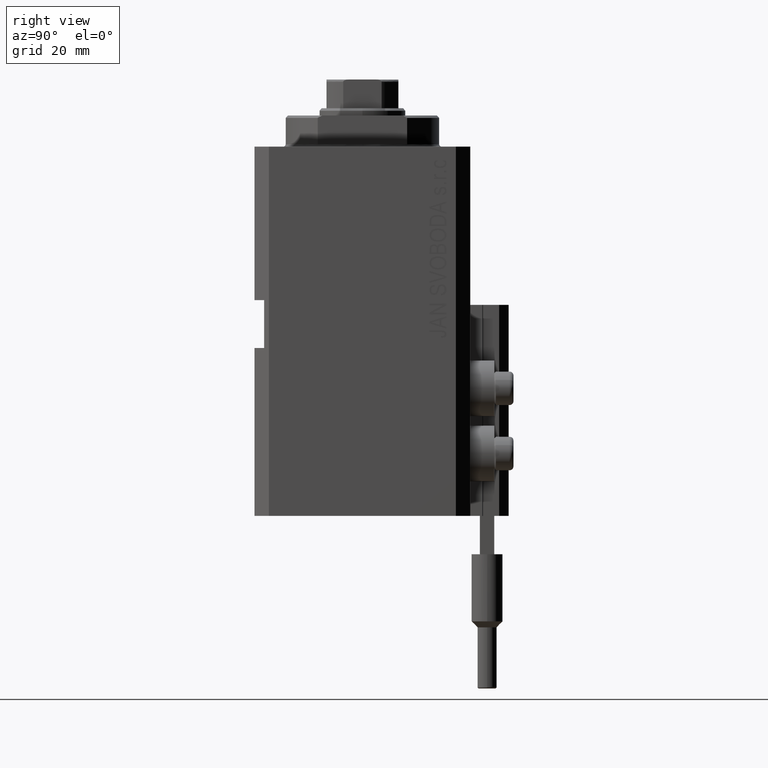
[diagram: clean part render]
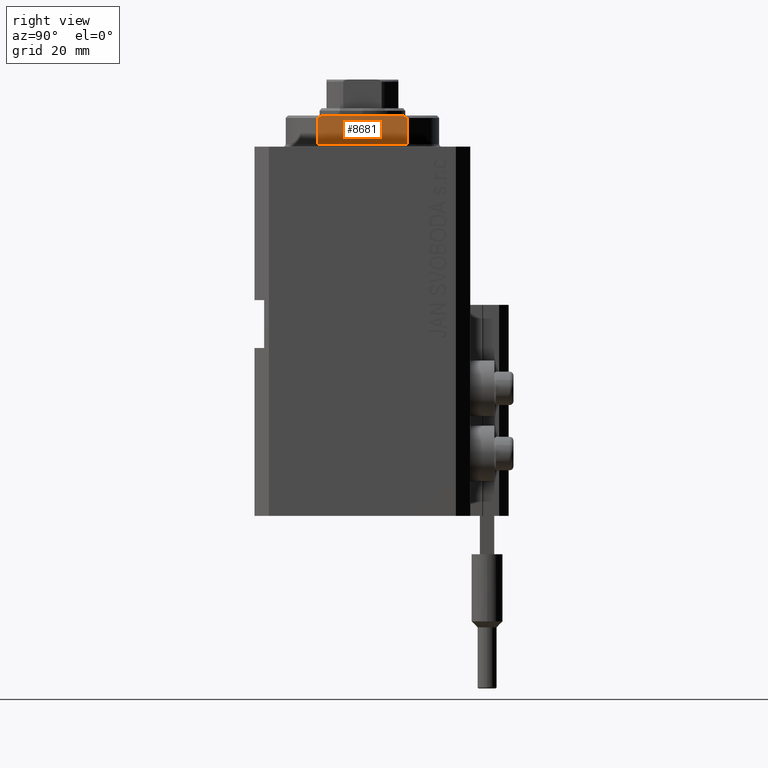
[diagram: same view with one face highlighted and labeled with its STEP entity id]
A machine part, right view. The second image highlights one B-rep face of the part: STEP entity #8681.
In plain terms, the highlighted planar face has unit normal (-1, 0, 0).
Its self-contained STEP definition (entity closure, byte-faithful):
#3423 = EDGE_CURVE ( 'NONE', #23325, #42978, #14586, .T. ) ;
#4137 = CARTESIAN_POINT ( 'NONE',  ( -13.00000000000000000, 9.034035639617135516, -6.171007825636148247 ) ) ;
#7753 = EDGE_CURVE ( 'NONE', #8978, #27877, #24381, .T. ) ;
#7782 = CARTESIAN_POINT ( 'NONE',  ( -13.00000000000000000, -9.327379053088815652, -0.4999999999999995559 ) ) ;
#8473 = CARTESIAN_POINT ( 'NONE',  ( -13.00000000000000000, -43.08131845707602992, -0.4999999999999995559 ) ) ;
#8681 = ADVANCED_FACE ( 'NONE', ( #46675 ), #14169, .F. ) ;
#8978 = VERTEX_POINT ( 'NONE', #15723 ) ;
#9394 = VERTEX_POINT ( 'NONE', #14948 ) ;
#10342 = CARTESIAN_POINT ( 'NONE',  ( -13.00000000000000000, -8.738941625005658409, -6.337731789204286592 ) ) ;
#10762 = B_SPLINE_CURVE_WITH_KNOTS ( 'NONE', 3,
 ( #13989, #10342, #43552, #18336 ),
 .UNSPECIFIED., .F., .F.,
 ( 4, 4 ),
 ( 0.04915043732154475431, 0.05017913261572017058 ),
 .UNSPECIFIED. ) ;
#12381 = CARTESIAN_POINT ( 'NONE',  ( -13.00000000000000000, 9.327379053088916905, -6.000000000000014211 ) ) ;
#12486 = VECTOR ( 'NONE', #28987, 1000.000000000000000 ) ;
#13910 = ORIENTED_EDGE ( 'NONE', *, *, #38888, .T. ) ;
#13935 = DIRECTION ( 'NONE',  ( 1.000000000000000000, 0.000000000000000000, 0.000000000000000000 ) ) ;
#13989 = CARTESIAN_POINT ( 'NONE',  ( -13.00000000000000000, -8.440971508067139695, -6.500000000000000000 ) ) ;
#14169 = PLANE ( 'NONE',  #46170 ) ;
#14586 = B_SPLINE_CURVE_WITH_KNOTS ( 'NONE', 3,
 ( #12381, #4137, #41941, #43129 ),
 .UNSPECIFIED., .F., .F.,
 ( 4, 4 ),
 ( 0.03031084603841392722, 0.03132841702658674399 ),
 .UNSPECIFIED. ) ;
#14948 = CARTESIAN_POINT ( 'NONE',  ( -13.00000000000000000, -8.440971508067139695, -6.500000000000000000 ) ) ;
#15723 = CARTESIAN_POINT ( 'NONE',  ( -13.00000000000000000, 9.327379053088815652, -0.4999999999999995559 ) ) ;
#18336 = CARTESIAN_POINT ( 'NONE',  ( -13.00000000000000000, -9.327379053088815652, -6.000000000000023981 ) ) ;
#21466 = LINE ( 'NONE', #36260, #12486 ) ;
#21501 = CARTESIAN_POINT ( 'NONE',  ( -13.00000000000000000, 9.327379053088916905, -6.000000000000014211 ) ) ;
#21705 = VECTOR ( 'NONE', #38203, 1000.000000000000000 ) ;
#23325 = VERTEX_POINT ( 'NONE', #21501 ) ;
#23424 = CARTESIAN_POINT ( 'NONE',  ( -13.00000000000000000, 9.327379053088813876, -6.500000000000000000 ) ) ;
#24381 = LINE ( 'NONE', #8473, #31426 ) ;
#24892 = EDGE_CURVE ( 'NONE', #9394, #26107, #10762, .T. ) ;
#26107 = VERTEX_POINT ( 'NONE', #39447 ) ;
#26291 = EDGE_LOOP ( 'NONE', ( #33322, #13910, #31800, #27082, #29393, #36904 ) ) ;
#26711 = CARTESIAN_POINT ( 'NONE',  ( -13.00000000000000000, 8.440971508067139695, -6.500000000000000000 ) ) ;
#27082 = ORIENTED_EDGE ( 'NONE', *, *, #27318, .F. ) ;
#27318 = EDGE_CURVE ( 'NONE', #27877, #26107, #29504, .T. ) ;
#27877 = VERTEX_POINT ( 'NONE', #7782 ) ;
#28987 = DIRECTION ( 'NONE',  ( -0.000000000000000000, -1.000000000000000000, -0.000000000000000000 ) ) ;
#29393 = ORIENTED_EDGE ( 'NONE', *, *, #7753, .F. ) ;
#29504 = LINE ( 'NONE', #40890, #39296 ) ;
#31426 = VECTOR ( 'NONE', #42807, 1000.000000000000000 ) ;
#31800 = ORIENTED_EDGE ( 'NONE', *, *, #24892, .T. ) ;
#32127 = DIRECTION ( 'NONE',  ( 0.000000000000000000, 0.000000000000000000, -1.000000000000000000 ) ) ;
#33322 = ORIENTED_EDGE ( 'NONE', *, *, #3423, .T. ) ;
#36260 = CARTESIAN_POINT ( 'NONE',  ( -13.00000000000000000, -43.08131845707602992, -6.500000000000000000 ) ) ;
#36904 = ORIENTED_EDGE ( 'NONE', *, *, #38068, .F. ) ;
#38068 = EDGE_CURVE ( 'NONE', #23325, #8978, #41847, .T. ) ;
#38203 = DIRECTION ( 'NONE',  ( -0.000000000000000000, -0.000000000000000000, 1.000000000000000000 ) ) ;
#38888 = EDGE_CURVE ( 'NONE', #42978, #9394, #21466, .T. ) ;
#39296 = VECTOR ( 'NONE', #44516, 1000.000000000000000 ) ;
#39447 = CARTESIAN_POINT ( 'NONE',  ( -13.00000000000000000, -9.327379053088815652, -6.000000000000023981 ) ) ;
#40890 = CARTESIAN_POINT ( 'NONE',  ( -13.00000000000000000, -9.327379053088813876, -6.500000000000000000 ) ) ;
#41847 = LINE ( 'NONE', #23424, #21705 ) ;
#41941 = CARTESIAN_POINT ( 'NONE',  ( -13.00000000000000000, 8.738667591047022398, -6.337881022290549282 ) ) ;
#42783 = CARTESIAN_POINT ( 'NONE',  ( -13.00000000000000000, -43.08131845707602992, -0.4999999999999995559 ) ) ;
#42807 = DIRECTION ( 'NONE',  ( -0.000000000000000000, -1.000000000000000000, -0.000000000000000000 ) ) ;
#42978 = VERTEX_POINT ( 'NONE', #26711 ) ;
#43129 = CARTESIAN_POINT ( 'NONE',  ( -13.00000000000000000, 8.440971508067139695, -6.500000000000000000 ) ) ;
#43552 = CARTESIAN_POINT ( 'NONE',  ( -13.00000000000000000, -9.034292940839598884, -6.170857829009066542 ) ) ;
#44516 = DIRECTION ( 'NONE',  ( 0.000000000000000000, 0.000000000000000000, -1.000000000000000000 ) ) ;
#46170 = AXIS2_PLACEMENT_3D ( 'NONE', #42783, #13935, #32127 ) ;
#46675 = FACE_OUTER_BOUND ( 'NONE', #26291, .T. ) ;